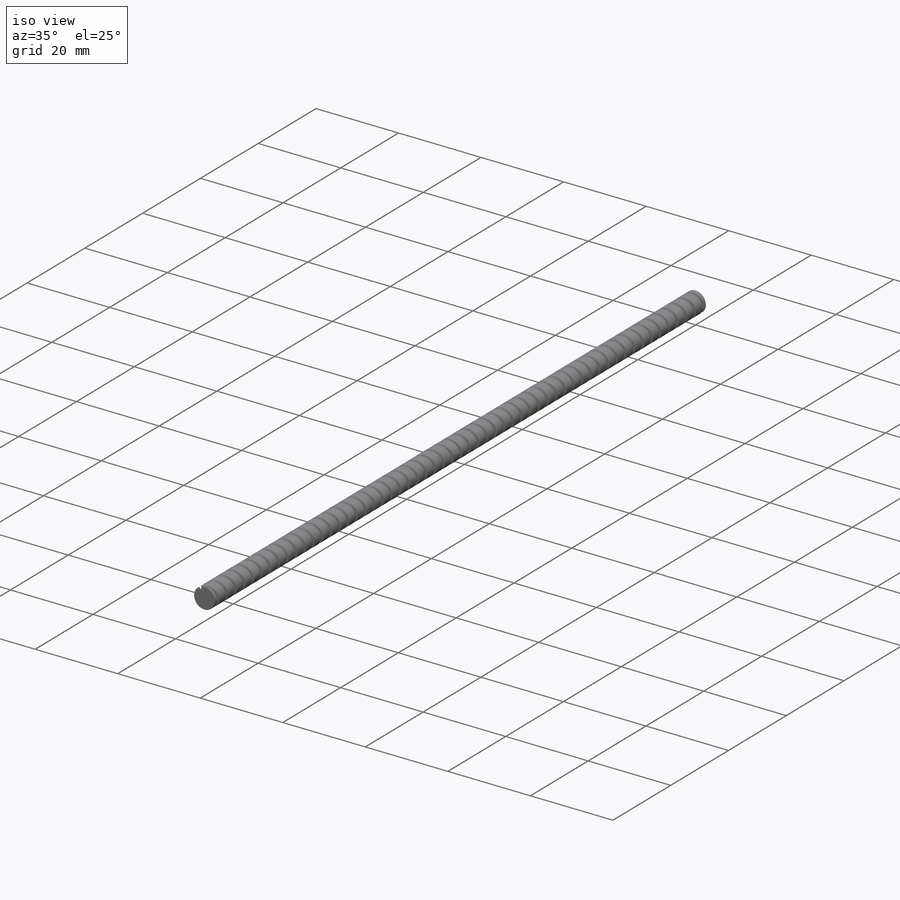
[diagram: iso view]
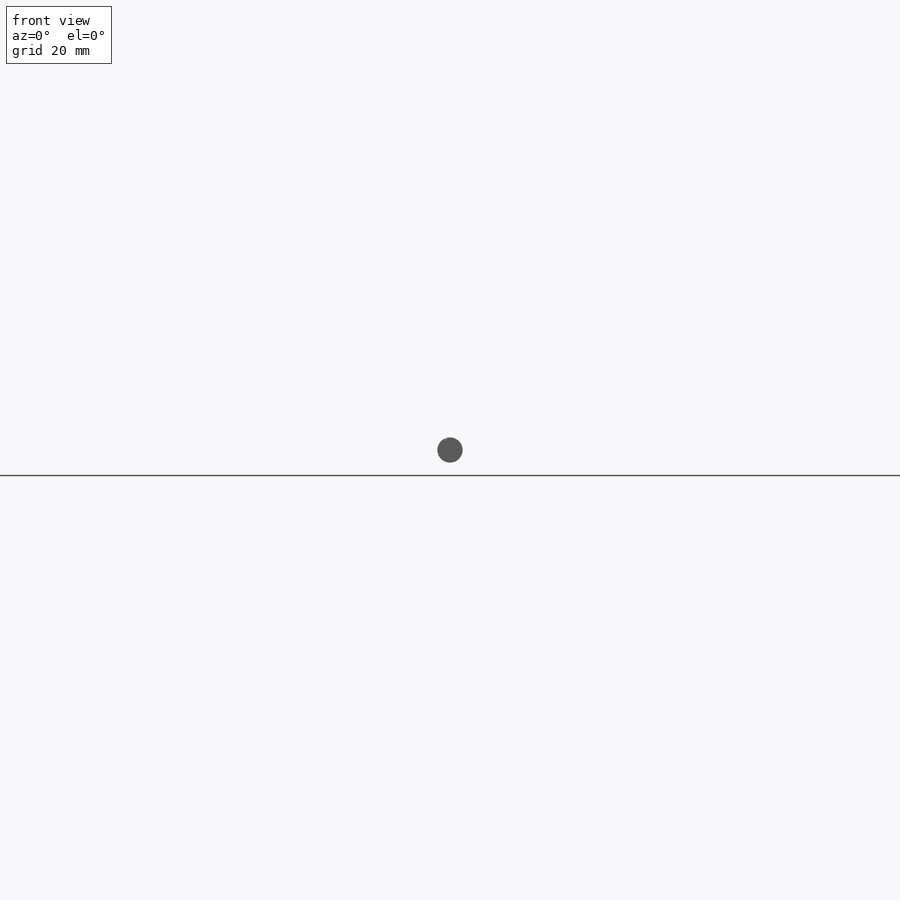
[diagram: front view]
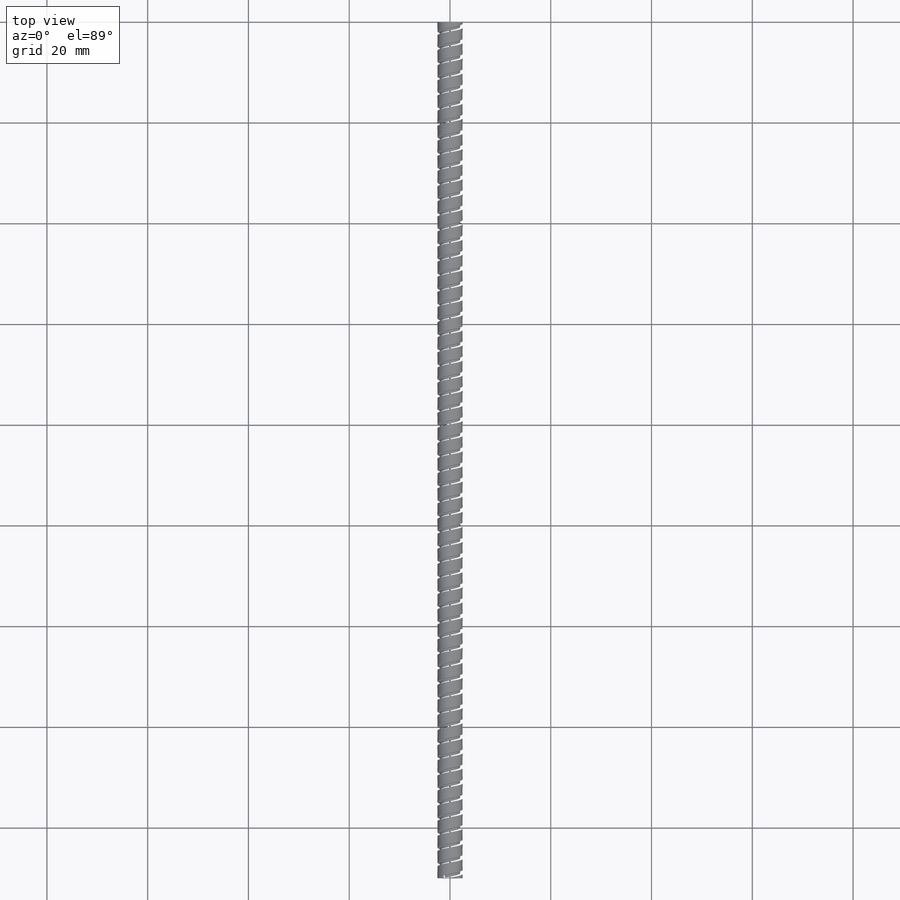
[diagram: top view]
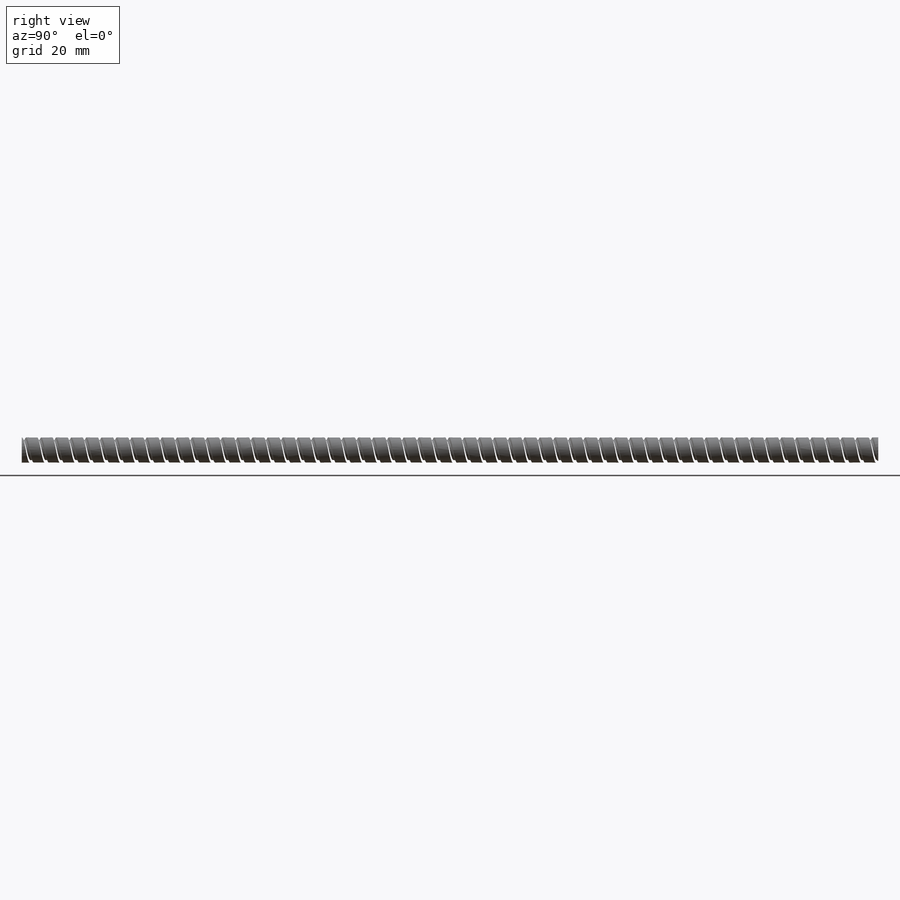
[diagram: right view]
SOLIDWORKS PART (.sldprt)
format: sldprt  version: not decoded by parser v0  size: 1,158,144 bytes
history: native  units: mm
features: sketch x3, material x1, extrude x1, helix x1, sweep x1 (+11 scaffold rows collapsed)
feature tree (18):
  scaffold x11  (default folders/planes/origin — collapsed)
  material  "Material <not specified>"
  sketch  "Sketch1"  dims[D1=5.0mm]
  extrude  "Boss-Extrude1"  Depth=170mm
  sketch  "Sketch2"  dims[D1=5.0mm]
  helix  "Helix/Spiral1"  Pitch=170mm
  sketch  "Sketch3"  dims[c1.D1=0.45mm c1.D2=0.3mm c2.D1=0.45mm c2.D2=0.45mm c2.D3=0.8mm c3.D1=0.45mm c3.D4=1.0mm c4.D1=~0.519058mm c5.D1=~109.703265deg c6.D1=~0.488668mm c7.D1=~109.703265deg c7.D4=~0.488668mm c8.D4=~109.703265deg c9.D4=~0.488668mm]
  sweep  "Cut-Sweep3"
decode coverage: 5 of 6 modeling features carry decoded parameters
note: ~ marks probable driven/reference dimensions
note: suppression state not decoded; provenance and decode notes live in map.json
